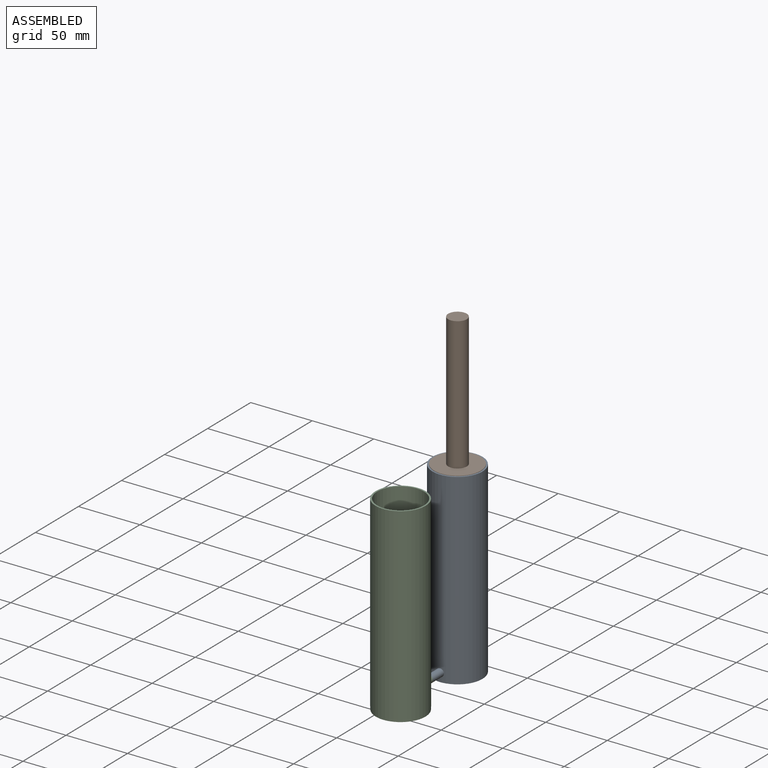
[diagram: assembled view]
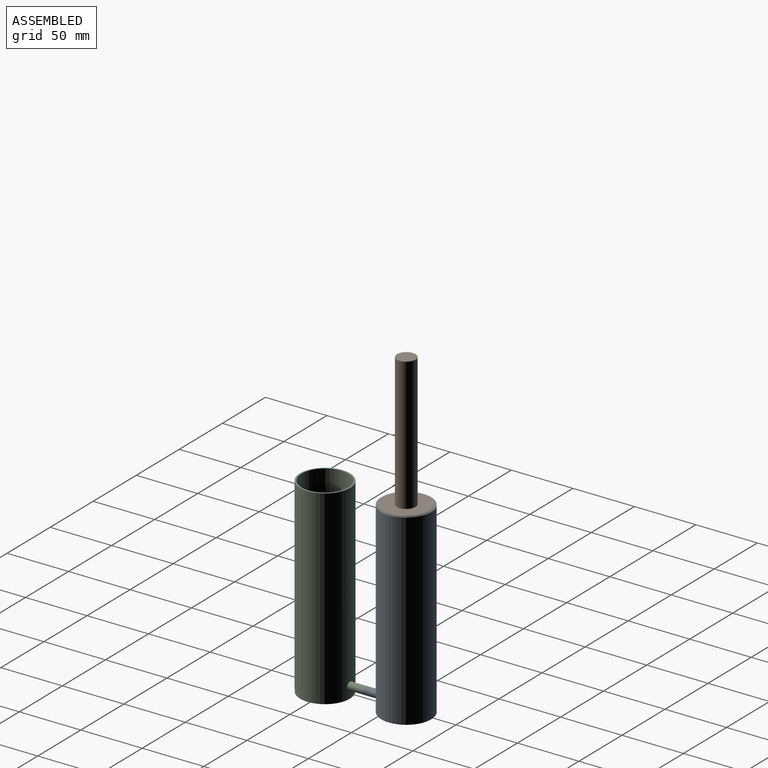
[diagram: assembled view, second angle]
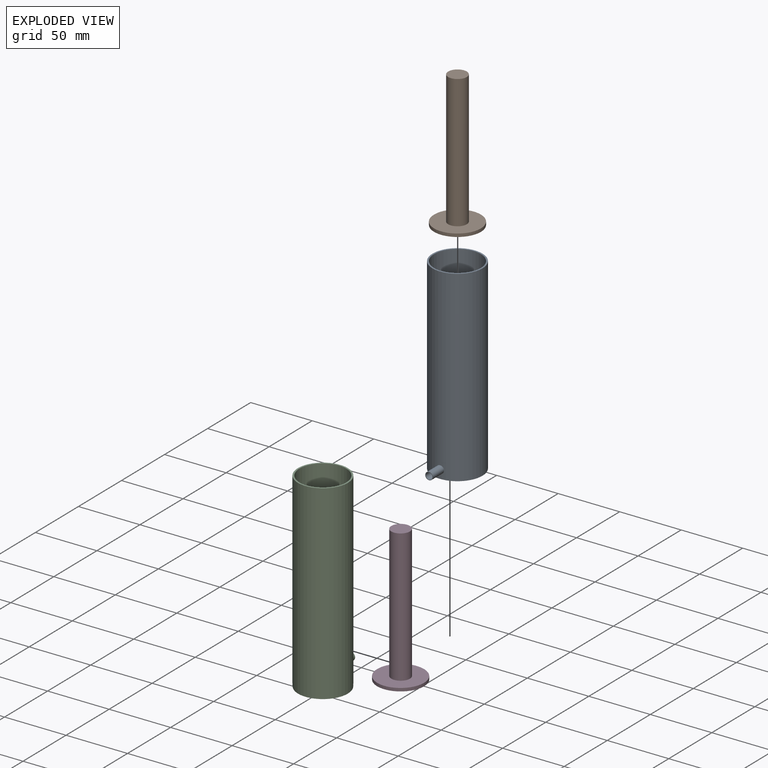
[diagram: exploded view]
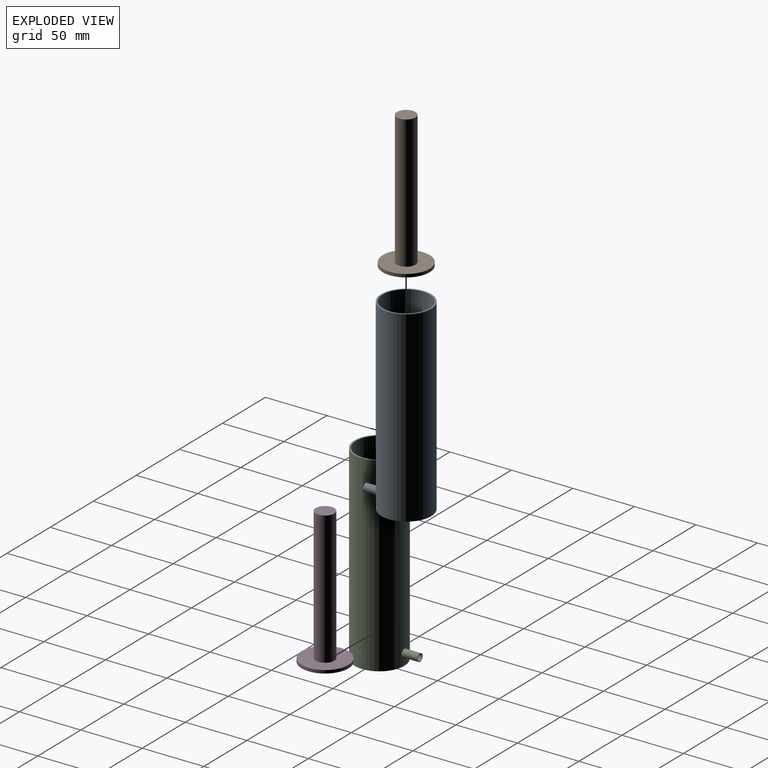
[diagram: exploded view, second angle]
ASSEMBLY  parts=4 mates=4
PART A: 13 faces, bbox 40.6x53.3x152.4 mm
  f0: cylinder r=19.05mm len=38.1mm, axis (0,0,-1), area 1641.4mm2, adj f4,f6,f10
  f1: cylinder r=20.32mm len=152.4mm, axis (0,0,-1), area 19427.1mm2, adj f3,f4,f8
  f2: cylinder r=19.05mm len=133.35mm, axis (0,0,-1), area 15961.3mm2, adj f3,f5
  f3: plane 40.64x40.64mm, normal (0,0,1), area 157.1mm2, adj f1,f2
  f4: plane 40.64x40.64mm, normal (0,0,-1), area 157.1mm2, adj f0,f1
  f5: plane 38.1x38.1mm, normal (0,0,1), area 1082.4mm2, adj f2,f7
  f6: plane 38.1x38.1mm, normal (0,0,-1), area 1082.4mm2, adj f0,f7
  f7: cylinder r=4.28mm len=8.57mm, axis (0,0,-1), area 136.7mm2, adj f5,f6
  f8: cylinder r=3.11mm len=12.94mm, axis (0,1,0), area 250.3mm2, adj f1,f11
  f9: cylinder r=2.66mm len=25.4mm, axis (0,1,0), area 425.2mm2, adj f11,f12
  f10: cylinder r=3.11mm len=11.43mm, axis (0,1,0), area 220.7mm2, adj f0,f12
  f11: plane 6.22x6.22mm, normal (0,-1,0), area 8mm2, adj f8,f9
  f12: plane 6.22x6.22mm, normal (0,1,0), area 8mm2, adj f9,f10
PART B: 5 faces, bbox 38.1x38.1x110.7 mm
  f0: cylinder r=19.05mm len=38.1mm, axis (0,0,-1), area 304mm2, adj f1,f2
  f1: plane 38.1x38.1mm, normal (0,0,1), area 959.5mm2, adj f0,f3
  f2: plane 38.1x38.1mm, normal (0,0,-1), area 1140.1mm2, adj f0
  f3: cylinder r=7.58mm len=108.2mm, axis (0,0,-1), area 5154.2mm2, adj f1,f4
  f4: plane 15.16x15.16mm, normal (0,0,1), area 180.6mm2, adj f3
PART C: 16 faces, bbox 40.6x53.3x154.9 mm
  f0: cylinder r=19.05mm len=38.1mm, axis (0,0,-1), area 1641.8mm2, adj f6,f10,f15
  f1: cylinder r=20.32mm len=152.4mm, axis (0,0,-1), area 19427.4mm2, adj f3,f4,f8
  f2: cylinder r=19.05mm len=133.35mm, axis (0,0,-1), area 15961.3mm2, adj f3,f5
  f3: plane 40.64x40.64mm, normal (0,0,1), area 157.1mm2, adj f1,f2
  f4: plane 40.64x40.64mm, normal (0,0,-1), area 14.2mm2, adj f1,f14
  f5: plane 38.1x38.1mm, normal (0,0,1), area 1082.4mm2, adj f2,f7
  f6: plane 38.1x38.1mm, normal (0,0,-1), area 1082.4mm2, adj f0,f7
  f7: cylinder r=4.28mm len=8.57mm, axis (0,0,-1), area 136.7mm2, adj f5,f6
  f8: cylinder r=3.11mm len=12.94mm, axis (0,-1,0), area 250.3mm2, adj f1,f11
  f9: cylinder r=2.66mm len=25.4mm, axis (0,-1,0), area 425.2mm2, adj f11,f12
  f10: cylinder r=3.11mm len=11.43mm, axis (0,-1,0), area 220.7mm2, adj f0,f12
  f11: plane 6.22x6.22mm, normal (0,1,0), area 8mm2, adj f8,f9
  f12: plane 6.22x6.22mm, normal (0,-1,0), area 8mm2, adj f9,f10
  f13: plane 40.42x40.42mm, normal (0,0,-1), area 1282.9mm2, adj f14
  f14: cylinder r=20.21mm len=40.42mm, axis (0,0,1), area 322.5mm2, adj f4,f13
  f15: plane 38.1x38.1mm, normal (0,0,1), area 1140.1mm2, adj f0
PART D: same geometry as B
PLACE A t=(64.44,69.72,49.51)mm
PLACE B t=(64.44,69.72,123.5)mm
PLACE C t=(64.44,69.72,49.51)mm
PLACE D t=(64.44,3.68,-7.24)mm
MATE cylindrical A.f8 <-> C.f8  axis (0,1,0) through (64.44,43.21,-19.72)mm
MATE cylindrical A.f0 <-> B.f0  axis (0,0,-1) through (64.44,69.72,59.03)mm
MATE cylindrical C.f0 <-> D.f0  axis (0,0,-1) through (64.44,3.68,59.03)mm
MATE planar A.f8 <-> C.f8  axis (0,-1,0) through (64.44,36.7,-19.72)mm
